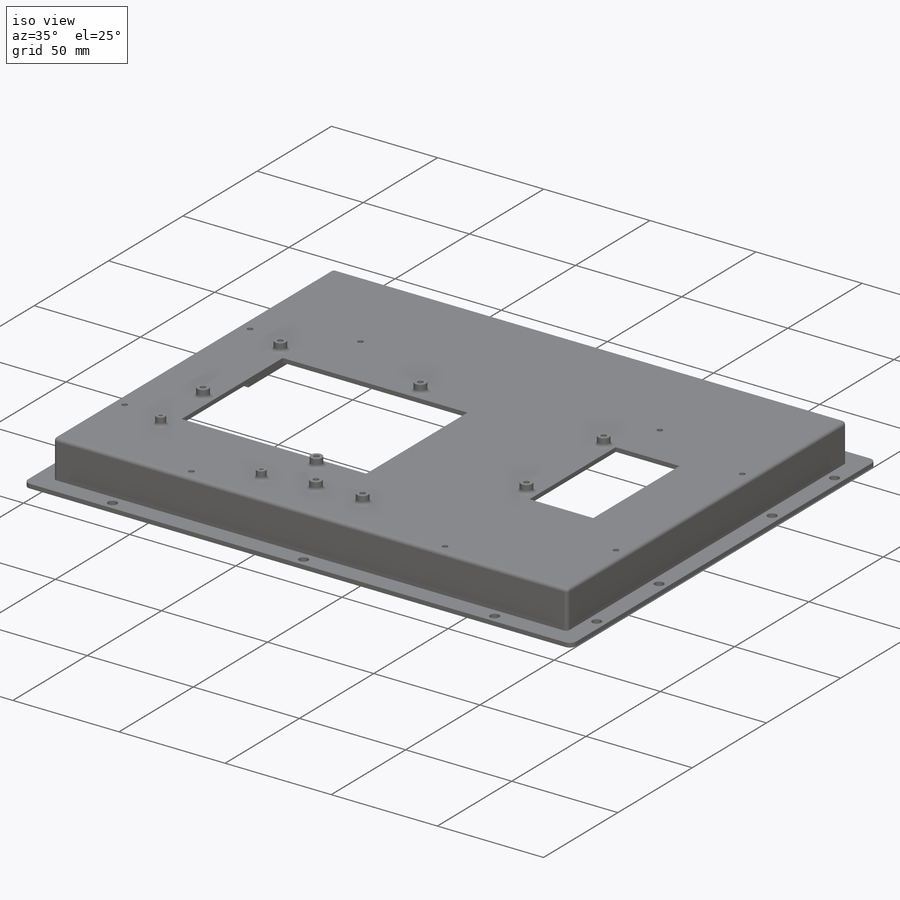
[diagram: iso view]
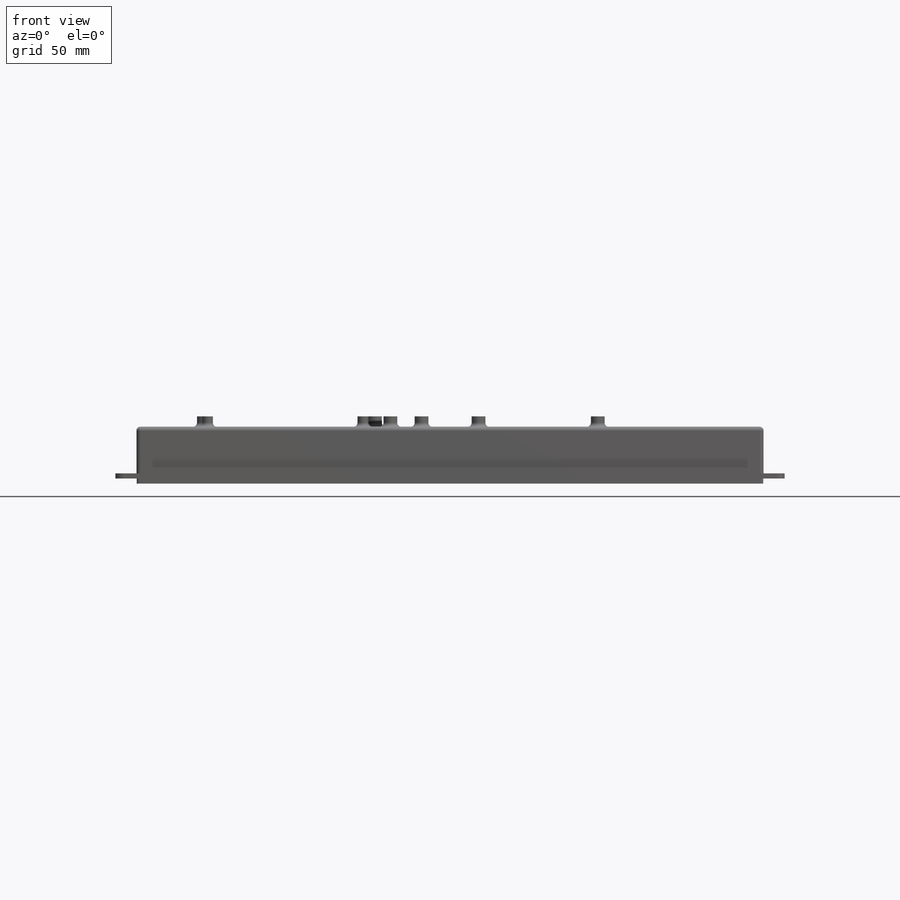
[diagram: front view]
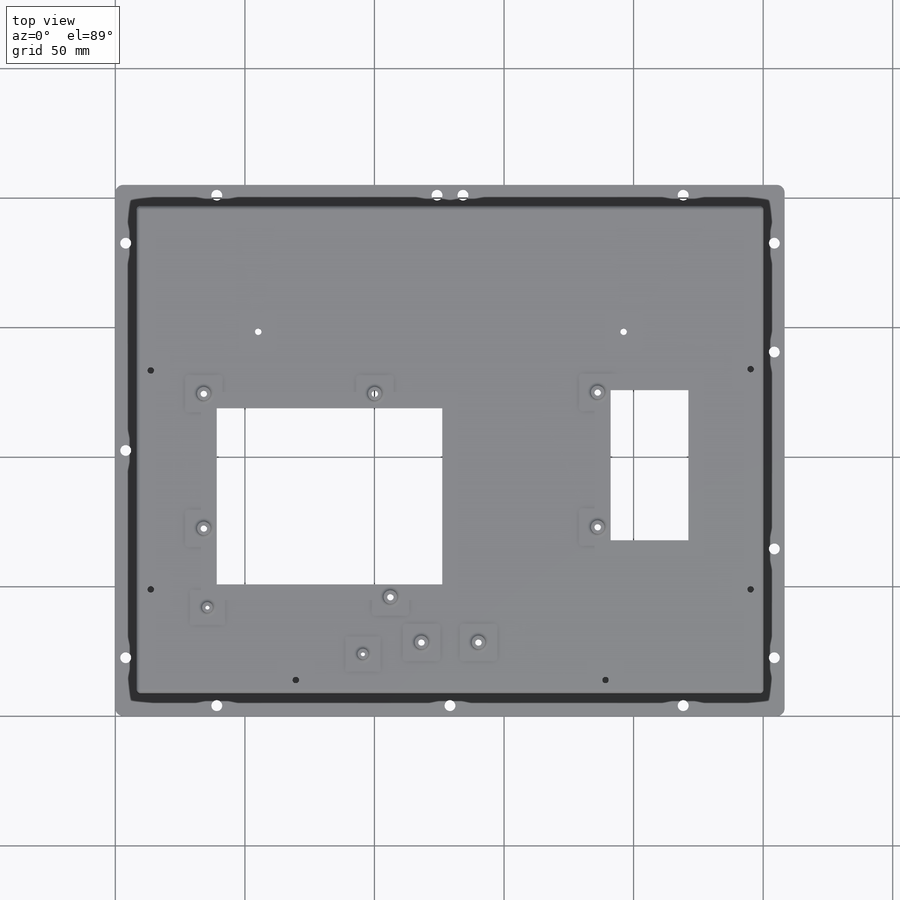
[diagram: top view]
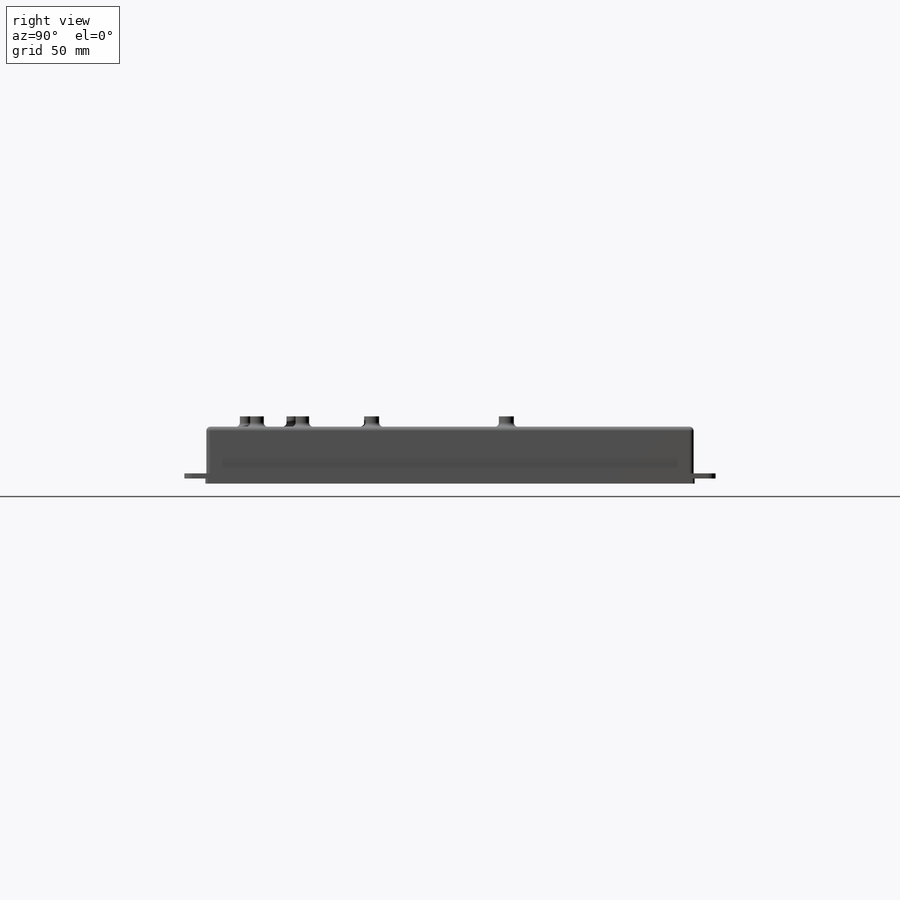
[diagram: right view]
SOLIDWORKS PART (.sldprt)
format: sldprt  version: not decoded by parser v0  size: 1,447,936 bytes
history: native  units: mm
features: extrude x317, sketch x19, cut_extrude x13, fillet x3, material x1 + 1 further entry (+12 scaffold rows collapsed)
feature tree (366):
  scaffold x12  (default folders/planes/origin — collapsed)
  material  "Material <not specified>"
  "Annotations"  RD2=2.3mm
  sketch  "Sketch1"  dims[D1=258.3mm D2=205.0mm]
  extrude  "Boss-Extrude1"  Depth=20mm
  sketch  "Sketch2"  dims[D1=242.0mm D2=188.0mm D3=188.0mm]
  cut_extrude  "Cut-Extrude1"  Depth=18mm
  sketch  "Sketch3"  dims[D1=238.0mm D2=184.0mm]
  cut_extrude  "Cut-Extrude2"  Depth=18mm
  sketch  "Sketch4"  dims[D1=31.0mm D2=87.0mm D3=42.0mm D4=68.0mm D5=30.0mm D6=58.0mm D7=59.0mm D8=29.0mm]
  cut_extrude  "Cut-Extrude3"  Depth=0 flange_len_value=0
  extrude  "Associativity_IDs"  Depth=0 flange_len_value=0
  extrude  "Associativity_IDs"  Depth=0 flange_len_value=0
  extrude  "Associativity_IDs"  Depth=0 flange_len_value=0
  extrude  "Associativity_IDs"  Depth=0 flange_len_value=0
  extrude  "Associativity_IDs"  Depth=0 flange_len_value=0
  extrude  "Associativity_IDs"  Depth=0 flange_len_value=0
  extrude  "Associativity_IDs"  Depth=0 flange_len_value=0
  extrude  "Associativity_IDs"  Depth=0 flange_len_value=0
  extrude  "Associativity_IDs"  Depth=0 flange_len_value=0
  extrude  "Associativity_IDs"  Depth=0 flange_len_value=0
  extrude  "Associativity_IDs"  Depth=0 flange_len_value=0
  extrude  "Associativity_IDs"  Depth=0 flange_len_value=0
  extrude  "Associativity_IDs"  Depth=0 flange_len_value=0
  extrude  "Associativity_IDs"  Depth=0 flange_len_value=0
  extrude  "Associativity_IDs"  Depth=0 flange_len_value=0
  extrude  "Associativity_IDs"  Depth=0 flange_len_value=0
  extrude  "Associativity_IDs"  Depth=0 flange_len_value=0
  extrude  "Associativity_IDs"  Depth=0 flange_len_value=0
  extrude  "Associativity_IDs"  Depth=0 flange_len_value=0
  extrude  "Associativity_IDs"  Depth=0 flange_len_value=0
  extrude  "Associativity_IDs"  Depth=0 flange_len_value=0
  extrude  "Associativity_IDs"  Depth=0 flange_len_value=0
  extrude  "Associativity_IDs"  Depth=0 flange_len_value=0
  extrude  "Associativity_IDs"  Depth=0 flange_len_value=0
  sketch  "Sketch5"  dims[c1.D1=5.3mm c1.D4=5.0mm c1.D5=5.0mm c1.D7=5.0mm c1.D8=5.0mm c1.D9=5.0mm c1.D10=5.0mm c1.D13=5.3mm c1.D2=52.0mm c1.D3=66.0mm c2.D4=5.0mm c2.D5=20.0mm c2.D6=21.5mm c2.D7=5.0mm c2.D8=52.0mm c2.D9=5.0mm c2.D10=5.0mm c2.D11=22.0mm c2.D12=19.5mm c2.D13=110.0mm]
  extrude  "Boss-Extrude2"  Depth=4mm
  sketch  "Sketch6"  dims[D1=2.5mm]
  cut_extrude  "Cut-Extrude4"  [1 undecoded]
  extrude  "Associativity_IDs"  Depth=0 flange_len_value=0
  extrude  "Associativity_IDs"  Depth=0 flange_len_value=0
  extrude  "Associativity_IDs"  Depth=0 flange_len_value=0
  extrude  "Associativity_IDs"  Depth=0 flange_len_value=0
  extrude  "Associativity_IDs"  Depth=0 flange_len_value=0
  extrude  "Associativity_IDs"  Depth=0 flange_len_value=0
  extrude  "Associativity_IDs"  Depth=0 flange_len_value=0
  extrude  "Associativity_IDs"  Depth=0 flange_len_value=0
  extrude  "Associativity_IDs"  Depth=0 flange_len_value=0
  extrude  "Associativity_IDs"  Depth=0 flange_len_value=0
  extrude  "Associativity_IDs"  Depth=0 flange_len_value=0
  extrude  "Associativity_IDs"  Depth=0 flange_len_value=0
  extrude  "Associativity_IDs"  Depth=0 flange_len_value=0
  extrude  "Associativity_IDs"  Depth=0 flange_len_value=0
  extrude  "Associativity_IDs"  Depth=0 flange_len_value=0
  extrude  "Associativity_IDs"  Depth=0 flange_len_value=0
  extrude  "Associativity_IDs"  Depth=0 flange_len_value=0
  extrude  "Associativity_IDs"  Depth=0 flange_len_value=0
  sketch  "Sketch7"  dims[c1.D1=4.2mm c1.D2=4.2mm c1.D3=~5.814831mm c1.D6=4.2mm c1.D7=4.2mm c1.D13=4.2mm c1.D14=4.2mm c1.D15=4.2mm c1.D16=4.2mm c2.D14=4.2mm c2.D2=4.0mm c2.D3=4.0mm c2.D4=4.0mm c2.D5=4.0mm c2.D6=90.0mm c2.D7=90.0mm c2.D8=42.0mm c2.D9=42.0mm c2.D10=76.0mm c2.D11=80.0mm c2.D12=80.0mm c2.D13=10.0mm c3.D14=20.0mm c3.D15=20.0mm c3.D16=85.0mm c3.D5=4.0mm c4.D14=39.15mm]
  cut_extrude  "Cut-Extrude5"  [1 undecoded]
  extrude  "Associativity_IDs"  Depth=0 flange_len_value=0
  extrude  "Associativity_IDs"  Depth=0 flange_len_value=0
  extrude  "Associativity_IDs"  Depth=0 flange_len_value=0
  extrude  "Associativity_IDs"  Depth=0 flange_len_value=0
  extrude  "Associativity_IDs"  Depth=0 flange_len_value=0
  extrude  "Associativity_IDs"  Depth=0 flange_len_value=0
  extrude  "Associativity_IDs"  Depth=0 flange_len_value=0
  extrude  "Associativity_IDs"  Depth=0 flange_len_value=0
  extrude  "Associativity_IDs"  Depth=0 flange_len_value=0
  extrude  "Associativity_IDs"  Depth=0 flange_len_value=0
  extrude  "Associativity_IDs"  Depth=0 flange_len_value=0
  extrude  "Associativity_IDs"  Depth=0 flange_len_value=0
  extrude  "Associativity_IDs"  Depth=0 flange_len_value=0
  extrude  "Associativity_IDs"  Depth=0 flange_len_value=0
  extrude  "Associativity_IDs"  Depth=0 flange_len_value=0
  extrude  "Associativity_IDs"  Depth=0 flange_len_value=0
  sketch  "Sketch8"  dims[D1=2.5mm]
  cut_extrude  "Cut-Extrude6"  [1 undecoded]
  sketch  "Sketch9"  dims[D1=6.0mm]
  extrude  "Boss-Extrude5"  Depth=2mm
  extrude  "Associativity_IDs"  Depth=0 flange_len_value=0
  extrude  "Associativity_IDs"  Depth=0 flange_len_value=0
  extrude  "Associativity_IDs"  Depth=0 flange_len_value=0
  extrude  "Associativity_IDs"  Depth=0 flange_len_value=0
  extrude  "Associativity_IDs"  Depth=0 flange_len_value=0
  extrude  "Associativity_IDs"  Depth=0 flange_len_value=0
  extrude  "Associativity_IDs"  Depth=0 flange_len_value=0
  extrude  "Associativity_IDs"  Depth=0 flange_len_value=0
  extrude  "Associativity_IDs"  Depth=0 flange_len_value=0
  extrude  "Associativity_IDs"  Depth=0 flange_len_value=0
  extrude  "Associativity_IDs"  Depth=0 flange_len_value=0
  extrude  "Associativity_IDs"  Depth=0 flange_len_value=0
  extrude  "Associativity_IDs"  Depth=0 flange_len_value=0
  extrude  "Associativity_IDs"  Depth=0 flange_len_value=0
  extrude  "Associativity_IDs"  Depth=0 flange_len_value=0
  extrude  "Associativity_IDs"  Depth=0 flange_len_value=0
  extrude  "Associativity_IDs"  Depth=0 flange_len_value=0
  extrude  "Associativity_IDs"  Depth=0 flange_len_value=0
  extrude  "Associativity_IDs"  Depth=0 flange_len_value=0
  extrude  "Associativity_IDs"  Depth=0 flange_len_value=0
  extrude  "Associativity_IDs"  Depth=0 flange_len_value=0
  extrude  "Associativity_IDs"  Depth=0 flange_len_value=0
  extrude  "Associativity_IDs"  Depth=0 flange_len_value=0
  extrude  "Associativity_IDs"  Depth=0 flange_len_value=0
  extrude  "Associativity_IDs"  Depth=0 flange_len_value=0
  extrude  "Associativity_IDs"  Depth=0 flange_len_value=0
  extrude  "Associativity_IDs"  Depth=0 flange_len_value=0
  extrude  "Associativity_IDs"  Depth=0 flange_len_value=0
  extrude  "Associativity_IDs"  Depth=0 flange_len_value=0
  extrude  "Associativity_IDs"  Depth=0 flange_len_value=0
  extrude  "Associativity_IDs"  Depth=0 flange_len_value=0
  extrude  "Associativity_IDs"  Depth=0 flange_len_value=0
  extrude  "Associativity_IDs"  Depth=0 flange_len_value=0
  extrude  "Associativity_IDs"  Depth=0 flange_len_value=0
  extrude  "Associativity_IDs"  Depth=0 flange_len_value=0
  extrude  "Associativity_IDs"  Depth=0 flange_len_value=0
  extrude  "Associativity_IDs"  Depth=0 flange_len_value=0
  extrude  "Associativity_IDs"  Depth=0 flange_len_value=0
  extrude  "Associativity_IDs"  Depth=0 flange_len_value=0
  extrude  "Associativity_IDs"  Depth=0 flange_len_value=0
  sketch  "Sketch10"  dims[D1=242.0mm D2=20.0mm D3=12.0mm D4=12.0mm D5=188.5mm D6=15.0mm D7=15.0mm D8=55.0mm D9=12.0mm D10=12.0mm D11=105.0mm D12=12.0mm D13=20.0mm D14=37.0mm D15=35.0mm D16=35.0mm D17=20.0mm D18=12.0mm D19=37.0mm]
  extrude  "Boss-Extrude6"  Depth=5mm
  sketch  "Sketch11"  dims[D1=241.8mm D2=188.8mm]
  extrude  "Boss-Extrude7"  Depth=2mm
  sketch  "Sketch12"  dims[D1=225.0mm D2=173.5mm]
  cut_extrude  "Cut-Extrude7"  [1 undecoded]
  extrude  "Associativity_IDs"  Depth=0 flange_len_value=0
  extrude  "Associativity_IDs"  Depth=0 flange_len_value=0
  extrude  "Associativity_IDs"  Depth=0 flange_len_value=0
  extrude  "Associativity_IDs"  Depth=0 flange_len_value=0
  extrude  "Associativity_IDs"  Depth=0 flange_len_value=0
  extrude  "Associativity_IDs"  Depth=0 flange_len_value=0
  extrude  "Associativity_IDs"  Depth=0 flange_len_value=0
  extrude  "Associativity_IDs"  Depth=0 flange_len_value=0
  extrude  "Associativity_IDs"  Depth=0 flange_len_value=0
  extrude  "Associativity_IDs"  Depth=0 flange_len_value=0
  extrude  "Associativity_IDs"  Depth=0 flange_len_value=0
  extrude  "Associativity_IDs"  Depth=0 flange_len_value=0
  extrude  "Associativity_IDs"  Depth=0 flange_len_value=0
  extrude  "Associativity_IDs"  Depth=0 flange_len_value=0
  extrude  "Associativity_IDs"  Depth=0 flange_len_value=0
  extrude  "Associativity_IDs"  Depth=0 flange_len_value=0
  extrude  "Associativity_IDs"  Depth=0 flange_len_value=0
  extrude  "Associativity_IDs"  Depth=0 flange_len_value=0
  extrude  "Associativity_IDs"  Depth=0 flange_len_value=0
  extrude  "Associativity_IDs"  Depth=0 flange_len_value=0
  extrude  "Associativity_IDs"  Depth=0 flange_len_value=0
  extrude  "Associativity_IDs"  Depth=0 flange_len_value=0
  extrude  "Associativity_IDs"  Depth=0 flange_len_value=0
  extrude  "Associativity_IDs"  Depth=0 flange_len_value=0
  extrude  "Associativity_IDs"  Depth=0 flange_len_value=0
  extrude  "Associativity_IDs"  Depth=0 flange_len_value=0
  extrude  "Associativity_IDs"  Depth=0 flange_len_value=0
  extrude  "Associativity_IDs"  Depth=0 flange_len_value=0
  extrude  "Associativity_IDs"  Depth=0 flange_len_value=0
  extrude  "Associativity_IDs"  Depth=0 flange_len_value=0
  extrude  "Associativity_IDs"  Depth=0 flange_len_value=0
  extrude  "Associativity_IDs"  Depth=0 flange_len_value=0
  extrude  "Associativity_IDs"  Depth=0 flange_len_value=0
  extrude  "Associativity_IDs"  Depth=0 flange_len_value=0
  extrude  "Associativity_IDs"  Depth=0 flange_len_value=0
  extrude  "Associativity_IDs"  Depth=0 flange_len_value=0
  extrude  "Associativity_IDs"  Depth=0 flange_len_value=0
  extrude  "Associativity_IDs"  Depth=0 flange_len_value=0
  extrude  "Associativity_IDs"  Depth=0 flange_len_value=0
  extrude  "Associativity_IDs"  Depth=0 flange_len_value=0
  extrude  "Associativity_IDs"  Depth=0 flange_len_value=0
  extrude  "Associativity_IDs"  Depth=0 flange_len_value=0
  extrude  "Associativity_IDs"  Depth=0 flange_len_value=0
  extrude  "Associativity_IDs"  Depth=0 flange_len_value=0
  extrude  "Associativity_IDs"  Depth=0 flange_len_value=0
  extrude  "Associativity_IDs"  Depth=0 flange_len_value=0
  extrude  "Associativity_IDs"  Depth=0 flange_len_value=0
  extrude  "Associativity_IDs"  Depth=0 flange_len_value=0
  extrude  "Associativity_IDs"  Depth=0 flange_len_value=0
  extrude  "Associativity_IDs"  Depth=0 flange_len_value=0
  extrude  "Associativity_IDs"  Depth=0 flange_len_value=0
  extrude  "Associativity_IDs"  Depth=0 flange_len_value=0
  extrude  "Associativity_IDs"  Depth=0 flange_len_value=0
  sketch  "Sketch13"
  cut_extrude  "Cut-Extrude8"  [1 undecoded]
  sketch  "Sketch14"
  cut_extrude  "Cut-Extrude9"  [1 undecoded]
  sketch  "Sketch15"  dims[D1=10.3mm D2=18.0mm D3=10.3mm D4=18.0mm D5=5.5mm]
  cut_extrude  "Cut-Extrude10"  Depth=1.4mm
  sketch  "Sketch16"  dims[D1=50.0mm]
  cut_extrude  "Cut-Extrude11"  [1 undecoded]
  extrude  "Associativity_IDs"  Depth=0 flange_len_value=0
  extrude  "Associativity_IDs"  Depth=0 flange_len_value=0
  extrude  "Associativity_IDs"  Depth=0 flange_len_value=0
  extrude  "Associativity_IDs"  Depth=0 flange_len_value=0
  extrude  "Associativity_IDs"  Depth=0 flange_len_value=0
  extrude  "Associativity_IDs"  Depth=0 flange_len_value=0
  extrude  "Associativity_IDs"  Depth=0 flange_len_value=0
  extrude  "Associativity_IDs"  Depth=0 flange_len_value=0
  extrude  "Associativity_IDs"  Depth=0 flange_len_value=0
  extrude  "Associativity_IDs"  Depth=0 flange_len_value=0
  extrude  "Associativity_IDs"  Depth=0 flange_len_value=0
  extrude  "Associativity_IDs"  Depth=0 flange_len_value=0
  extrude  "Associativity_IDs"  Depth=0 flange_len_value=0
  extrude  "Associativity_IDs"  Depth=0 flange_len_value=0
  extrude  "Associativity_IDs"  Depth=0 flange_len_value=0
  extrude  "Associativity_IDs"  Depth=0 flange_len_value=0
  extrude  "Associativity_IDs"  Depth=0 flange_len_value=0
  extrude  "Associativity_IDs"  Depth=0 flange_len_value=0
  extrude  "Associativity_IDs"  Depth=0 flange_len_value=0
  extrude  "Associativity_IDs"  Depth=0 flange_len_value=0
  extrude  "Associativity_IDs"  Depth=0 flange_len_value=0
  extrude  "Associativity_IDs"  Depth=0 flange_len_value=0
  extrude  "Associativity_IDs"  Depth=0 flange_len_value=0
  extrude  "Associativity_IDs"  Depth=0 flange_len_value=0
  extrude  "Associativity_IDs"  Depth=0 flange_len_value=0
  extrude  "Associativity_IDs"  Depth=0 flange_len_value=0
  extrude  "Associativity_IDs"  Depth=0 flange_len_value=0
  extrude  "Associativity_IDs"  Depth=0 flange_len_value=0
  extrude  "Associativity_IDs"  Depth=0 flange_len_value=0
  extrude  "Associativity_IDs"  Depth=0 flange_len_value=0
  extrude  "Associativity_IDs"  Depth=0 flange_len_value=0
  extrude  "Associativity_IDs"  Depth=0 flange_len_value=0
  extrude  "Associativity_IDs"  Depth=0 flange_len_value=0
  extrude  "Associativity_IDs"  Depth=0 flange_len_value=0
  extrude  "Associativity_IDs"  Depth=0 flange_len_value=0
  extrude  "Associativity_IDs"  Depth=0 flange_len_value=0
  extrude  "Associativity_IDs"  Depth=0 flange_len_value=0
  extrude  "Associativity_IDs"  Depth=0 flange_len_value=0
  extrude  "Associativity_IDs"  Depth=0 flange_len_value=0
  extrude  "Associativity_IDs"  Depth=0 flange_len_value=0
  extrude  "Associativity_IDs"  Depth=0 flange_len_value=0
  extrude  "Associativity_IDs"  Depth=0 flange_len_value=0
  extrude  "Associativity_IDs"  Depth=0 flange_len_value=0
  extrude  "Associativity_IDs"  Depth=0 flange_len_value=0
  extrude  "Associativity_IDs"  Depth=0 flange_len_value=0
  extrude  "Associativity_IDs"  Depth=0 flange_len_value=0
  extrude  "Associativity_IDs"  Depth=0 flange_len_value=0
  extrude  "Associativity_IDs"  Depth=0 flange_len_value=0
  extrude  "Associativity_IDs"  Depth=0 flange_len_value=0
  extrude  "Associativity_IDs"  Depth=0 flange_len_value=0
  extrude  "Associativity_IDs"  Depth=0 flange_len_value=0
  extrude  "Associativity_IDs"  Depth=0 flange_len_value=0
  extrude  "Associativity_IDs"  Depth=0 flange_len_value=0
  extrude  "Associativity_IDs"  Depth=0 flange_len_value=0
  extrude  "Associativity_IDs"  Depth=0 flange_len_value=0
  extrude  "Associativity_IDs"  Depth=0 flange_len_value=0
  extrude  "Associativity_IDs"  Depth=0 flange_len_value=0
  extrude  "Associativity_IDs"  Depth=0 flange_len_value=0
  extrude  "Associativity_IDs"  Depth=0 flange_len_value=0
  extrude  "Associativity_IDs"  Depth=0 flange_len_value=0
  extrude  "Associativity_IDs"  Depth=0 flange_len_value=0
  extrude  "Associativity_IDs"  Depth=0 flange_len_value=0
  extrude  "Associativity_IDs"  Depth=0 flange_len_value=0
  extrude  "Associativity_IDs"  Depth=0 flange_len_value=0
  extrude  "Associativity_IDs"  Depth=0 flange_len_value=0
  extrude  "Associativity_IDs"  Depth=0 flange_len_value=0
  extrude  "Associativity_IDs"  Depth=0 flange_len_value=0
  extrude  "Associativity_IDs"  Depth=0 flange_len_value=0
  extrude  "Associativity_IDs"  Depth=0 flange_len_value=0
  extrude  "Associativity_IDs"  Depth=0 flange_len_value=0
  extrude  "Associativity_IDs"  Depth=0 flange_len_value=0
  extrude  "Associativity_IDs"  Depth=0 flange_len_value=0
  extrude  "Associativity_IDs"  Depth=0 flange_len_value=0
  extrude  "Associativity_IDs"  Depth=0 flange_len_value=0
  extrude  "Associativity_IDs"  Depth=0 flange_len_value=0
  extrude  "Associativity_IDs"  Depth=0 flange_len_value=0
  extrude  "Associativity_IDs"  Depth=0 flange_len_value=0
  extrude  "Associativity_IDs"  Depth=0 flange_len_value=0
  extrude  "Associativity_IDs"  Depth=0 flange_len_value=0
  extrude  "Associativity_IDs"  Depth=0 flange_len_value=0
  extrude  "Associativity_IDs"  Depth=0 flange_len_value=0
  extrude  "Associativity_IDs"  Depth=0 flange_len_value=0
  extrude  "Associativity_IDs"  Depth=0 flange_len_value=0
  extrude  "Associativity_IDs"  Depth=0 flange_len_value=0
  extrude  "Associativity_IDs"  Depth=0 flange_len_value=0
  extrude  "Associativity_IDs"  Depth=0 flange_len_value=0
  sketch  "Sketch17"  dims[c1.D1=4.2mm c1.D2=3.5mm c1.D3=3.5mm c1.D4=4.2mm c1.D5=4.2mm c2.D2=70.6mm c2.D3=33.0mm c2.D4=15.0mm c2.D5=60.0mm]
  extrude  "Boss-Extrude8"  [1 undecoded]
  sketch  "Sketch18"  dims[D1=1.6mm]
  cut_extrude  "Cut-Extrude12"  [1 undecoded]
  extrude  "Associativity_IDs"  Depth=0 flange_len_value=0
  extrude  "Associativity_IDs"  Depth=0 flange_len_value=0
  extrude  "Associativity_IDs"  Depth=0 flange_len_value=0
  sketch  "Sketch19"
  cut_extrude  "Cut-Extrude13"  Depth=1.7mm
  extrude  "Associativity_IDs"  Depth=0 flange_len_value=0
  extrude  "Associativity_IDs"  Depth=0 flange_len_value=0
  extrude  "Associativity_IDs"  Depth=0 flange_len_value=0
  extrude  "Associativity_IDs"  Depth=0 flange_len_value=0
  extrude  "Associativity_IDs"  Depth=0 flange_len_value=0
  extrude  "Associativity_IDs"  Depth=0 flange_len_value=0
  extrude  "Associativity_IDs"  Depth=0 flange_len_value=0
  extrude  "Associativity_IDs"  Depth=0 flange_len_value=0
  extrude  "Associativity_IDs"  Depth=0 flange_len_value=0
  extrude  "Associativity_IDs"  Depth=0 flange_len_value=0
  extrude  "Associativity_IDs"  Depth=0 flange_len_value=0
  extrude  "Associativity_IDs"  Depth=0 flange_len_value=0
  extrude  "Associativity_IDs"  Depth=0 flange_len_value=0
  extrude  "Associativity_IDs"  Depth=0 flange_len_value=0
  fillet  "Fillet1"  Radius=1mm
  fillet  "Fillet2"  Radius=1.5mm
  extrude  "Associativity_IDs"  Depth=0 flange_len_value=0
  extrude  "Associativity_IDs"  Depth=0 flange_len_value=0
  extrude  "Associativity_IDs"  Depth=0 flange_len_value=0
  extrude  "Associativity_IDs"  Depth=0 flange_len_value=0
  extrude  "Associativity_IDs"  Depth=0 flange_len_value=0
  extrude  "Associativity_IDs"  Depth=0 flange_len_value=0
  extrude  "Associativity_IDs"  Depth=0 flange_len_value=0
  extrude  "Associativity_IDs"  Depth=0 flange_len_value=0
  extrude  "Associativity_IDs"  Depth=0 flange_len_value=0
  extrude  "Associativity_IDs"  Depth=0 flange_len_value=0
  extrude  "Associativity_IDs"  Depth=0 flange_len_value=0
  extrude  "Associativity_IDs"  Depth=0 flange_len_value=0
  extrude  "Associativity_IDs"  Depth=0 flange_len_value=0
  extrude  "Associativity_IDs"  Depth=0 flange_len_value=0
  extrude  "Associativity_IDs"  Depth=0 flange_len_value=0
  extrude  "Associativity_IDs"  Depth=0 flange_len_value=0
  extrude  "Associativity_IDs"  Depth=0 flange_len_value=0
  extrude  "Associativity_IDs"  Depth=0 flange_len_value=0
  extrude  "Associativity_IDs"  Depth=0 flange_len_value=0
  extrude  "Associativity_IDs"  Depth=0 flange_len_value=0
  extrude  "Associativity_IDs"  Depth=0 flange_len_value=0
  extrude  "Associativity_IDs"  Depth=0 flange_len_value=0
  extrude  "Associativity_IDs"  Depth=0 flange_len_value=0
  extrude  "Associativity_IDs"  Depth=0 flange_len_value=0
  extrude  "Associativity_IDs"  Depth=0 flange_len_value=0
  extrude  "Associativity_IDs"  Depth=0 flange_len_value=0
  extrude  "Associativity_IDs"  Depth=0 flange_len_value=0
  extrude  "Associativity_IDs"  Depth=0 flange_len_value=0
  extrude  "Associativity_IDs"  Depth=0 flange_len_value=0
  extrude  "Associativity_IDs"  Depth=0 flange_len_value=0
  extrude  "Associativity_IDs"  Depth=0 flange_len_value=0
  extrude  "Associativity_IDs"  Depth=0 flange_len_value=0
  extrude  "Associativity_IDs"  Depth=0 flange_len_value=0
  extrude  "Associativity_IDs"  Depth=0 flange_len_value=0
  extrude  "Associativity_IDs"  Depth=0 flange_len_value=0
  extrude  "Associativity_IDs"  Depth=0 flange_len_value=0
  extrude  "Associativity_IDs"  Depth=0 flange_len_value=0
  extrude  "Associativity_IDs"  Depth=0 flange_len_value=0
  extrude  "Associativity_IDs"  Depth=0 flange_len_value=0
  extrude  "Associativity_IDs"  Depth=0 flange_len_value=0
  extrude  "Associativity_IDs"  Depth=0 flange_len_value=0
  extrude  "Associativity_IDs"  Depth=0 flange_len_value=0
  extrude  "Associativity_IDs"  Depth=0 flange_len_value=0
  extrude  "Associativity_IDs"  Depth=0 flange_len_value=0
  extrude  "Associativity_IDs"  Depth=0 flange_len_value=0
  extrude  "Associativity_IDs"  Depth=0 flange_len_value=0
  extrude  "Associativity_IDs"  Depth=0 flange_len_value=0
  fillet  "Fillet3"  Radius=3mm
  extrude  "Associativity_IDs"  Depth=0 flange_len_value=0
  extrude  "Associativity_IDs"  Depth=0 flange_len_value=0
  extrude  "Associativity_IDs"  Depth=0 flange_len_value=0
  extrude  "Associativity_IDs"  Depth=0 flange_len_value=0
  extrude  "Associativity_IDs"  Depth=0 flange_len_value=0
  extrude  "Associativity_IDs"  Depth=0 flange_len_value=0
  extrude  "Associativity_IDs"  Depth=0 flange_len_value=0
  extrude  "Associativity_IDs"  Depth=0 flange_len_value=0
  extrude  "Associativity_IDs"  Depth=0 flange_len_value=0
  extrude  "Associativity_IDs"  Depth=0 flange_len_value=0
decode coverage: 340 of 352 modeling features carry decoded parameters; 1 rows unclassified (native names shown)
note: ~ marks probable driven/reference dimensions
note: 9 parameter values undecoded
summary: no parameter record found for 9 features
note: suppression state not decoded; provenance and decode notes live in map.json
